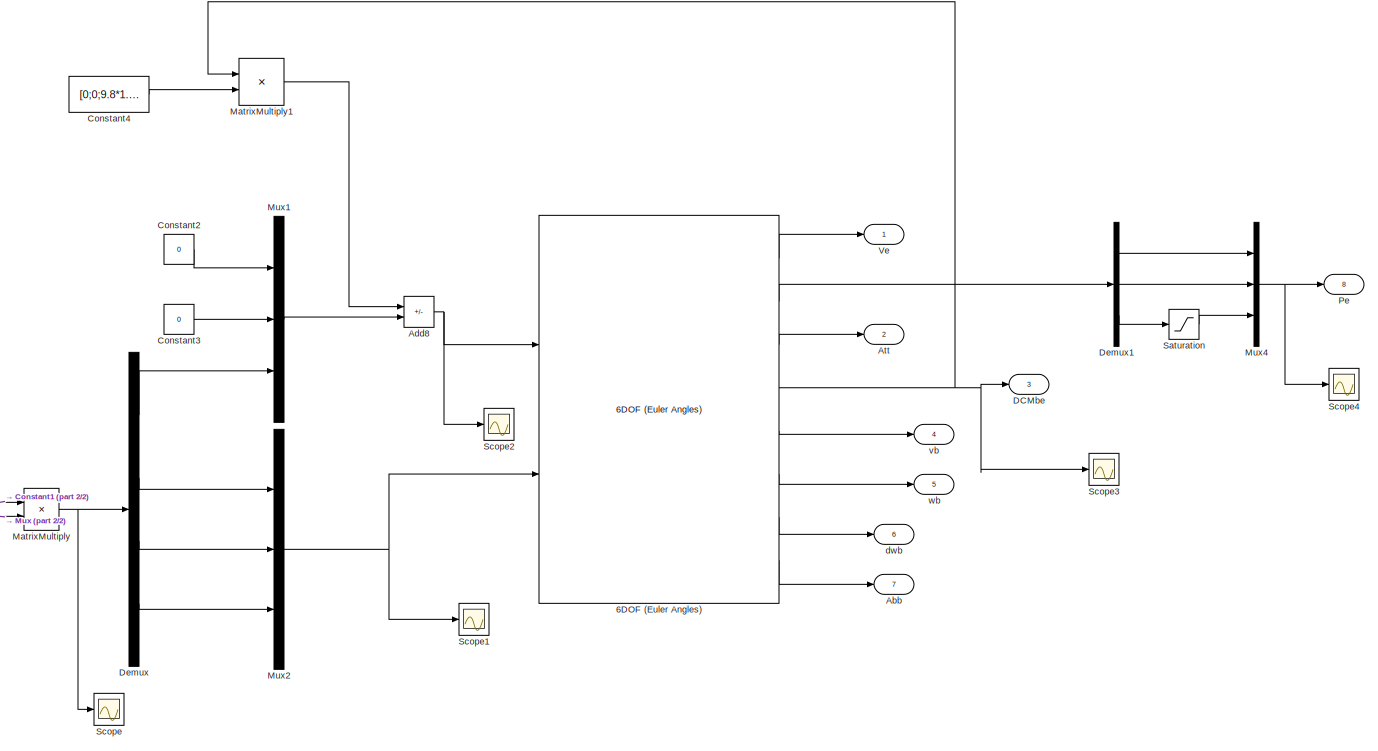
[diagram: root canvas - part 1/2, right side, full height]
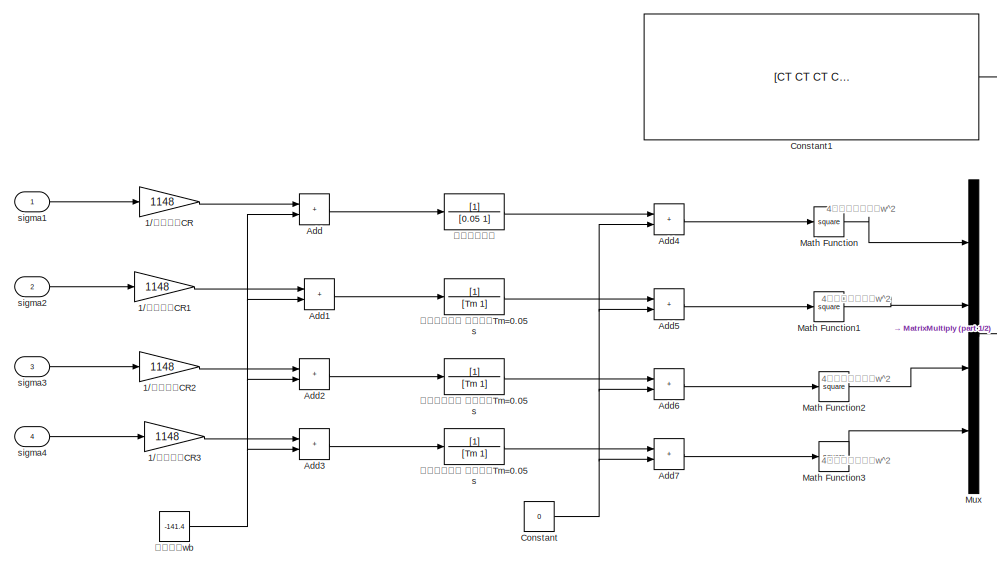
[diagram: root canvas - part 2/2, middle left region]
MODEL slx_51275a259e01
KIND model
CONFIG AbsTol = auto
CONFIG EnableMultiTasking = off
CONFIG FixedStep = auto
CONFIG MaxStep = auto
CONFIG MinStep = auto
CONFIG RelTol = 1e-3
CONFIG SampleTimeConstraint = Unconstrained
CONFIG SolverName = VariableStepAuto
CONFIG StartTime = 0.0
CONFIG StopTime = 10.0
BLOCK [Gain] 1//油门参数CR
  Gain = 1148
BLOCK [Gain] 1//油门参数CR1
  Gain = 1148
BLOCK [Gain] 1//油门参数CR2
  Gain = 1148
BLOCK [Gain] 1//油门参数CR3
  Gain = 1148
BLOCK [Reference] 6DOF (Euler Angles)  REF=shared6dof/6DOF (Euler Angles)
  Ports = [2, 8]
  SourceBlock = shared6dof/6DOF (Euler Angles)
  SourceProductBaseCode = AE,PW,DR,MT,VE
  SourceType = 6DOF EoM (Body Axis)
BLOCK [Outport] Abb
  Port = 7
BLOCK [Sum] Add
  IconShape = rectangular
  Ports = [2, 1]
BLOCK [Sum] Add1
  IconShape = rectangular
  Ports = [2, 1]
BLOCK [Sum] Add2
  IconShape = rectangular
  Ports = [2, 1]
BLOCK [Sum] Add3
  IconShape = rectangular
  Ports = [2, 1]
BLOCK [Sum] Add4
  IconShape = rectangular
  Ports = [2, 1]
BLOCK [Sum] Add5
  IconShape = rectangular
  Ports = [2, 1]
BLOCK [Sum] Add6
  IconShape = rectangular
  Ports = [2, 1]
BLOCK [Sum] Add7
  IconShape = rectangular
  Ports = [2, 1]
BLOCK [Sum] Add8
  IconShape = rectangular
  Inputs = -+
  Ports = [2, 1]
BLOCK [Outport] Att
  Port = 2
BLOCK [Constant] Constant
  Value = 0
BLOCK [Constant] Constant1
  Value = [CT CT CT CT;sqrt22*d*CT sqrt22*d*CT -sqrt22*d*CT -sqrt22*d*CT;sqrt22*d*CT -sqrt22*d*CT -sqrt22*d*CT sqrt22*d*CT;CM -CM CM -CM]
BLOCK [Constant] Constant2
  Value = 0
BLOCK [Constant] Constant3
  Value = 0
BLOCK [Constant] Constant4
  Value = [0;0;9.8*1.4]
BLOCK [Outport] DCMbe
  Port = 3
BLOCK [Demux] Demux
  Ports = [1, 4]
BLOCK [Demux] Demux1
  Outputs = 3
  Ports = [1, 3]
BLOCK [Math] Math Function
  Operator = square
  Ports = [1, 1]
BLOCK [Math] Math Function1
  Operator = square
  Ports = [1, 1]
BLOCK [Math] Math Function2
  Operator = square
  Ports = [1, 1]
BLOCK [Math] Math Function3
  Operator = square
  Ports = [1, 1]
BLOCK [Product] MatrixMultiply
  Multiplication = Matrix(*)
  Ports = [2, 1]
BLOCK [Product] MatrixMultiply1
  Multiplication = Matrix(*)
  Ports = [2, 1]
BLOCK [Mux] Mux
  DisplayOption = bar
  Ports = [4, 1]
BLOCK [Mux] Mux1
  DisplayOption = bar
  Inputs = 3
  Ports = [3, 1]
BLOCK [Mux] Mux2
  DisplayOption = bar
  Inputs = 3
  Ports = [3, 1]
BLOCK [Mux] Mux4
  DisplayOption = bar
  Inputs = 3
  Ports = [3, 1]
BLOCK [Outport] Pe
  Port = 8
BLOCK [Saturate] Saturation
BLOCK [Scope] Scope
  Floating = off
  NumInputPorts = 1
  Ports = [1]
  ScopeSpecificationString = Simulink.scopes.TimeScopeBlockCfg('CurrentConfiguration', extmgr.ConfigurationSet(extmgr.Configuration('Core','General UI',true),extmgr.Configuration('Core','Source UI',true),extmgr.Configuration('Sources','WiredSimulink',true),extmgr.Configuration('Visuals','Time Domain',true,'SerializedDisplays',{struct('MinYLimReal','-0.15001','MaxYLimReal','0.99855','YLabelReal','','MinYLimMag','0.00000','MaxY...<+1480ch>
BLOCK [Scope] Scope1
  Floating = off
  NumInputPorts = 1
  Ports = [1]
  ScopeSpecificationString = Simulink.scopes.TimeScopeBlockCfg('CurrentConfiguration', extmgr.ConfigurationSet(extmgr.Configuration('Core','General UI',true),extmgr.Configuration('Core','Source UI',true),extmgr.Configuration('Sources','WiredSimulink',true,'DataLoggingVariableName','ScopeData1'),extmgr.Configuration('Visuals','Time Domain',true,'SerializedDisplays',{struct('MinYLimReal','-0.03954','MaxYLimReal','0.00439','YLab...<+1386ch>
BLOCK [Scope] Scope2
  Floating = off
  NumInputPorts = 1
  Ports = [1]
  ScopeSpecificationString = Simulink.scopes.TimeScopeBlockCfg('CurrentConfiguration', extmgr.ConfigurationSet(extmgr.Configuration('Core','General UI',true),extmgr.Configuration('Core','Source UI',true),extmgr.Configuration('Sources','WiredSimulink',true,'DataLoggingVariableName','ScopeData2'),extmgr.Configuration('Visuals','Time Domain',true,'SerializedDisplays',{struct('MinYLimReal','-15.88455','MaxYLimReal','12.38895','YL...<+1389ch>
BLOCK [Scope] Scope3
  Floating = off
  NumInputPorts = 1
  Ports = [1]
  ScopeSpecificationString = Simulink.scopes.TimeScopeBlockCfg('CurrentConfiguration', extmgr.ConfigurationSet(extmgr.Configuration('Core','General UI',true),extmgr.Configuration('Core','Source UI',true),extmgr.Configuration('Sources','WiredSimulink',true,'DataLoggingVariableName','ScopeData3'),extmgr.Configuration('Visuals','Time Domain',true,'SerializedDisplays',{struct('MinYLimReal','-0.90902','MaxYLimReal','1.21211','YLab...<+1651ch>
BLOCK [Scope] Scope4
  Floating = off
  NumInputPorts = 1
  Ports = [1]
  ScopeSpecificationString = Simulink.scopes.TimeScopeBlockCfg('CurrentConfiguration', extmgr.ConfigurationSet(extmgr.Configuration('Core','General UI',true),extmgr.Configuration('Core','Source UI',true),extmgr.Configuration('Sources','WiredSimulink',true,'DataLoggingVariableName','ScopeData4'),extmgr.Configuration('Visuals','Time Domain',true,'SerializedDisplays',{struct('MinYLimReal','-13.04621','MaxYLimReal','14.22227','YL...<+1459ch>
BLOCK [Outport] Ve
BLOCK [Outport] dwb
  Port = 6
BLOCK [Inport] sigma1
BLOCK [Inport] sigma2
  Port = 2
BLOCK [Inport] sigma3
  Port = 3
BLOCK [Inport] sigma4
  Port = 4
BLOCK [Outport] vb
  Port = 4
BLOCK [Outport] wb
  Port = 5
BLOCK [Constant] 油门参数wb
  Value = -141.4
BLOCK [TransferFcn] 电机动态响应
  Denominator = [0.05 1]
BLOCK [TransferFcn] 电机动态响应 时间常数Tm=0.05s
  Denominator = [Tm 1]
BLOCK [TransferFcn] 电机动态响应 时间常数Tm=0.05s 
  Denominator = [Tm 1]
ANNOTATION (root): 4维向量电机转速w^2
LINE 1//油门参数CR1:1 -> Add1:1
LINE 1//油门参数CR2:1 -> Add2:1
LINE 1//油门参数CR3:1 -> Add3:1
LINE 1//油门参数CR:1 -> Add:1
LINE 6DOF (Euler Angles):1 -> Ve:1
LINE 6DOF (Euler Angles):2 -> Demux1:1
LINE 6DOF (Euler Angles):3 -> Att:1
NET 6DOF (Euler Angles):4 -> DCMbe:1, MatrixMultiply1:1, Scope3:1
LINE 6DOF (Euler Angles):5 -> vb:1
LINE 6DOF (Euler Angles):6 -> wb:1
LINE 6DOF (Euler Angles):7 -> dwb:1
LINE 6DOF (Euler Angles):8 -> Abb:1
LINE Add1:1 -> 电机动态响应 时间常数Tm=0.05s:1
LINE Add2:1 -> 电机动态响应 时间常数Tm=0.05s :1
LINE Add3:1 -> 电机动态响应 时间常数Tm=0.05s:1
LINE Add4:1 -> Math Function:1
LINE Add5:1 -> Math Function1:1
LINE Add6:1 -> Math Function2:1
LINE Add7:1 -> Math Function3:1
NET Add8:1 -> 6DOF (Euler Angles):1, Scope2:1
LINE Add:1 -> 电机动态响应:1
LINE Constant1:1 -> MatrixMultiply:1
LINE Constant2:1 -> Mux1:1
LINE Constant3:1 -> Mux1:2
LINE Constant4:1 -> MatrixMultiply1:2
NET Constant:1 -> Add4:2, Add5:2, Add6:2, Add7:2
LINE Demux1:1 -> Mux4:1
LINE Demux1:2 -> Mux4:2
LINE Demux1:3 -> Saturation:1
LINE Demux:1 -> Mux1:3
LINE Demux:2 -> Mux2:1
LINE Demux:3 -> Mux2:2
LINE Demux:4 -> Mux2:3
LINE Math Function1:1 -> Mux:2
LINE Math Function2:1 -> Mux:3
LINE Math Function3:1 -> Mux:4
LINE Math Function:1 -> Mux:1
LINE MatrixMultiply1:1 -> Add8:1
NET MatrixMultiply:1 -> Demux:1, Scope:1
LINE Mux1:1 -> Add8:2
NET Mux2:1 -> 6DOF (Euler Angles):2, Scope1:1
NET Mux4:1 -> Pe:1, Scope4:1
LINE Mux:1 -> MatrixMultiply:2
LINE Saturation:1 -> Mux4:3
LINE sigma1:1 -> 1//油门参数CR:1
LINE sigma2:1 -> 1//油门参数CR1:1
LINE sigma3:1 -> 1//油门参数CR2:1
LINE sigma4:1 -> 1//油门参数CR3:1
NET 油门参数wb:1 -> Add1:2, Add2:2, Add3:2, Add:2
LINE 电机动态响应 时间常数Tm=0.05s :1 -> Add6:1
NET 电机动态响应 时间常数Tm=0.05s:1 -> Add5:1, Add7:1
LINE 电机动态响应:1 -> Add4:1
note: NET lines group one-source signal fan-out (src -> all destinations, sorted); 1:1 wires keep LINE
